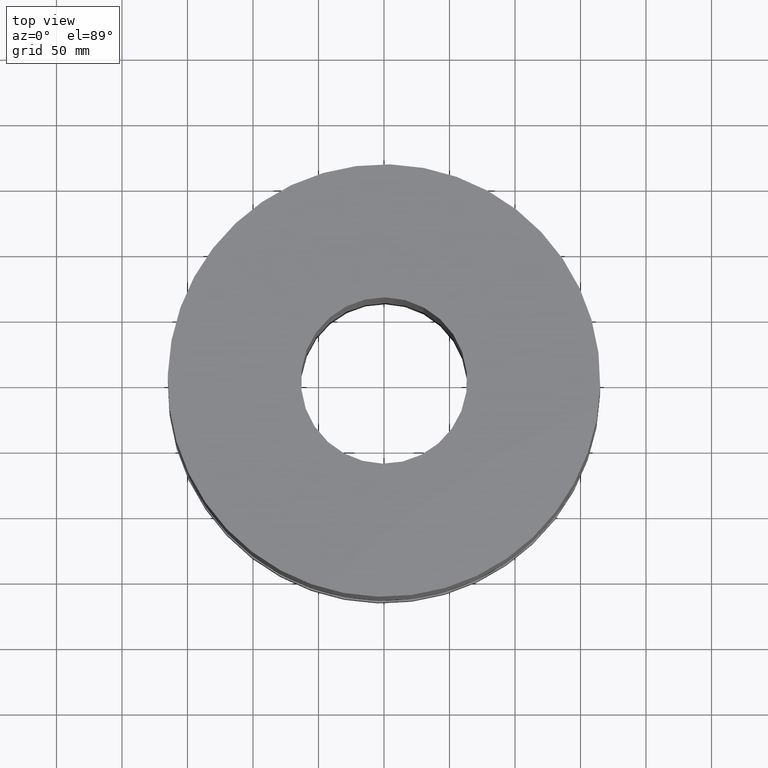
[diagram: clean part render]
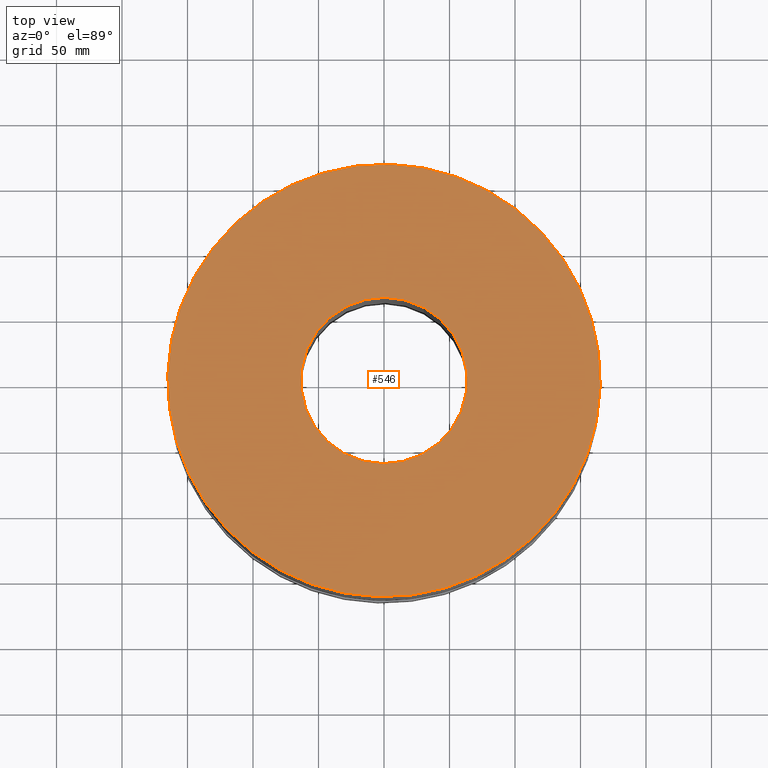
[diagram: same view with one face highlighted and labeled with its STEP entity id]
A machine part, top view. The second image highlights one B-rep face of the part: STEP entity #546.
In plain terms, the highlighted planar face has unit normal (0, 0, -1).
Its self-contained STEP definition (entity closure, byte-faithful):
#490=AXIS2_PLACEMENT_3D('Circle Axis2P3D',#488,#489,$) ;
#509=AXIS2_PLACEMENT_3D('Circle Axis2P3D',#507,#508,$) ;
#522=AXIS2_PLACEMENT_3D('Plane Axis2P3D',#519,#520,#521) ;
#530=AXIS2_PLACEMENT_3D('Circle Axis2P3D',#528,#529,$) ;
#539=AXIS2_PLACEMENT_3D('Circle Axis2P3D',#537,#538,$) ;
#485=CARTESIAN_POINT('Vertex',(3.11626600094,5.70428665231,11.75)) ;
#488=CARTESIAN_POINT('Axis2P3D Location',(0.,0.,11.75)) ;
#492=CARTESIAN_POINT('Vertex',(-3.11626600094,-5.70428665231,11.75)) ;
#507=CARTESIAN_POINT('Axis2P3D Location',(0.,0.,11.75)) ;
#519=CARTESIAN_POINT('Axis2P3D Location',(0.,6.50000000003,11.75)) ;
#528=CARTESIAN_POINT('Axis2P3D Location',(0.,0.,11.75)) ;
#532=CARTESIAN_POINT('Vertex',(-1.19856384652,-2.19395640473,11.75)) ;
#534=CARTESIAN_POINT('Vertex',(1.19856384652,2.19395640473,11.75)) ;
#537=CARTESIAN_POINT('Axis2P3D Location',(0.,0.,11.75)) ;
#489=DIRECTION('Axis2P3D Direction',(0.,0.,-0.0393700787402)) ;
#508=DIRECTION('Axis2P3D Direction',(0.,0.,-0.0393700787402)) ;
#520=DIRECTION('Axis2P3D Direction',(0.,0.,-0.0393700787402)) ;
#521=DIRECTION('Axis2P3D XDirection',(0.0393700787402,0.,0.)) ;
#529=DIRECTION('Axis2P3D Direction',(0.,0.,-0.0393700787402)) ;
#538=DIRECTION('Axis2P3D Direction',(0.,0.,-0.0393700787402)) ;
#525=ORIENTED_EDGE('',*,*,#494,.F.) ;
#526=ORIENTED_EDGE('',*,*,#511,.F.) ;
#543=ORIENTED_EDGE('',*,*,#536,.T.) ;
#544=ORIENTED_EDGE('',*,*,#541,.T.) ;
#545=FACE_BOUND('',#542,.T.) ;
#546=ADVANCED_FACE('PartBody',(#527,#545),#523,.F.) ;
#491=CIRCLE('generated circle',#490,6.50000000003) ;
#510=CIRCLE('generated circle',#509,6.50000000003) ;
#531=CIRCLE('generated circle',#530,2.50000000001) ;
#540=CIRCLE('generated circle',#539,2.50000000001) ;
#494=EDGE_CURVE('',#486,#493,#491,.T.) ;
#511=EDGE_CURVE('',#493,#486,#510,.T.) ;
#536=EDGE_CURVE('',#533,#535,#531,.T.) ;
#541=EDGE_CURVE('',#535,#533,#540,.T.) ;
#524=EDGE_LOOP('',(#525,#526)) ;
#542=EDGE_LOOP('',(#543,#544)) ;
#527=FACE_OUTER_BOUND('',#524,.T.) ;
#523=PLANE('',#522) ;
#486=VERTEX_POINT('',#485) ;
#493=VERTEX_POINT('',#492) ;
#533=VERTEX_POINT('',#532) ;
#535=VERTEX_POINT('',#534) ;